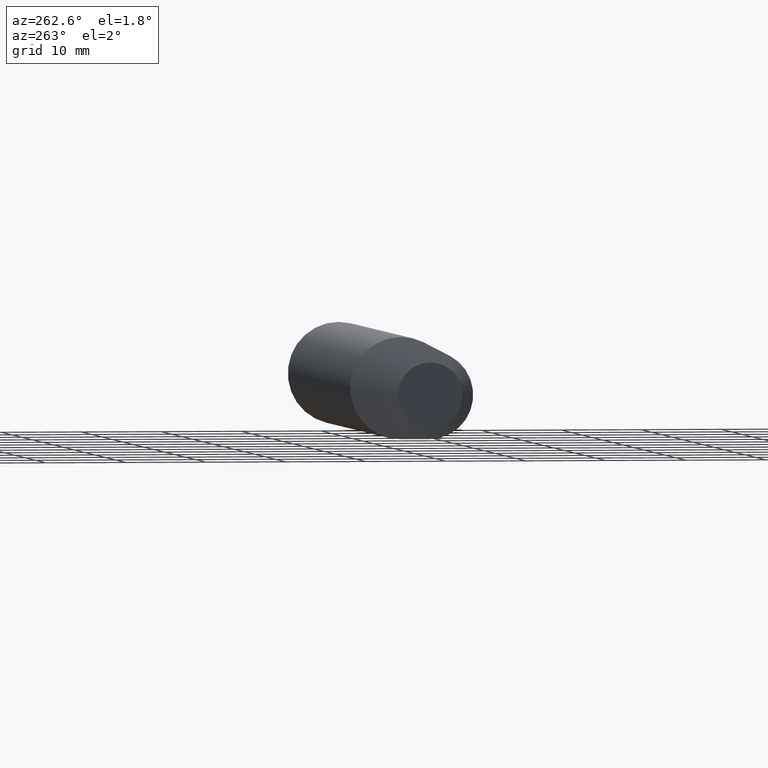
[diagram: clean part render]
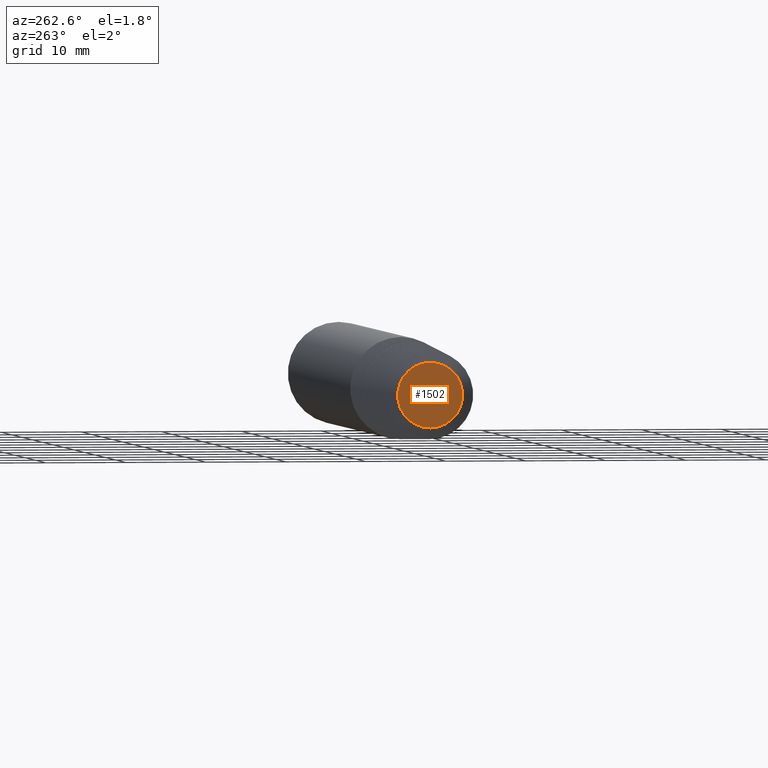
[diagram: same view with one face highlighted and labeled with its STEP entity id]
A machine part, auxiliary view. The second image highlights one B-rep face of the part: STEP entity #1502.
In plain terms, the highlighted planar face has unit normal (1, 0, 0).
Its self-contained STEP definition (entity closure, byte-faithful):
#434 = AXIS2_PLACEMENT_3D ( 'NONE', #2745, #1993, #2246 ) ;
#578 = EDGE_CURVE ( 'NONE', #952, #2658, #1395, .T. ) ;
#688 = EDGE_LOOP ( 'NONE', ( #1485, #1195 ) ) ;
#952 = VERTEX_POINT ( 'NONE', #1543 ) ;
#999 = DIRECTION ( 'NONE',  ( 1.000000000000000000, 0.0000000000000000000, 0.0000000000000000000 ) ) ;
#1124 = DIRECTION ( 'NONE',  ( 1.000000000000000000, 0.0000000000000000000, 0.0000000000000000000 ) ) ;
#1195 = ORIENTED_EDGE ( 'NONE', *, *, #578, .F. ) ;
#1221 = CARTESIAN_POINT ( 'NONE',  ( -0.9749999999999999778, 0.0000000000000000000, 0.0000000000000000000 ) ) ;
#1395 = CIRCLE ( 'NONE', #2408, 0.1599263712669248549 ) ;
#1402 = DIRECTION ( 'NONE',  ( 0.0000000000000000000, 0.0000000000000000000, -1.000000000000000000 ) ) ;
#1411 = CARTESIAN_POINT ( 'NONE',  ( -0.9749999999999999778, 0.0000000000000000000, -0.1599263712669248549 ) ) ;
#1475 = DIRECTION ( 'NONE',  ( 0.0000000000000000000, 0.0000000000000000000, -1.000000000000000000 ) ) ;
#1485 = ORIENTED_EDGE ( 'NONE', *, *, #1768, .F. ) ;
#1502 = ADVANCED_FACE ( 'NONE', ( #3155 ), #2007, .F. ) ;
#1543 = CARTESIAN_POINT ( 'NONE',  ( -0.9749999999999999778, 1.958533186712907920E-17, 0.1599263712669248549 ) ) ;
#1768 = EDGE_CURVE ( 'NONE', #2658, #952, #2199, .T. ) ;
#1900 = CARTESIAN_POINT ( 'NONE',  ( -0.9749999999999999778, 0.0000000000000000000, 0.0000000000000000000 ) ) ;
#1993 = DIRECTION ( 'NONE',  ( 1.000000000000000000, 0.0000000000000000000, 0.0000000000000000000 ) ) ;
#2007 = PLANE ( 'NONE',  #434 ) ;
#2199 = CIRCLE ( 'NONE', #3298, 0.1599263712669248549 ) ;
#2246 = DIRECTION ( 'NONE',  ( 0.0000000000000000000, 0.0000000000000000000, -1.000000000000000000 ) ) ;
#2408 = AXIS2_PLACEMENT_3D ( 'NONE', #1900, #1124, #1402 ) ;
#2658 = VERTEX_POINT ( 'NONE', #1411 ) ;
#2745 = CARTESIAN_POINT ( 'NONE',  ( -0.9749999999999999778, 0.0000000000000000000, 0.0000000000000000000 ) ) ;
#3155 = FACE_OUTER_BOUND ( 'NONE', #688, .T. ) ;
#3298 = AXIS2_PLACEMENT_3D ( 'NONE', #1221, #999, #1475 ) ;